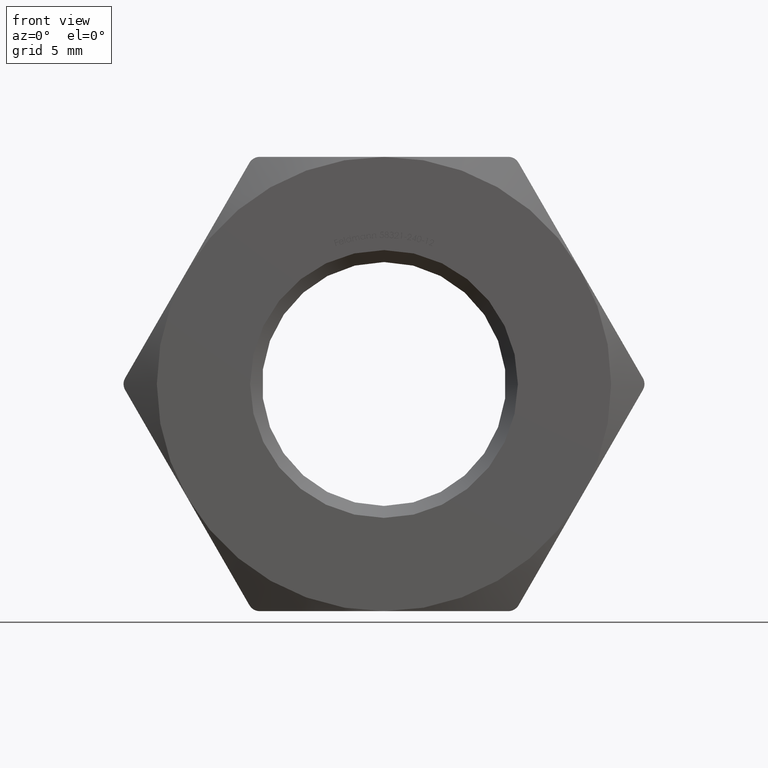
[diagram: clean part render]
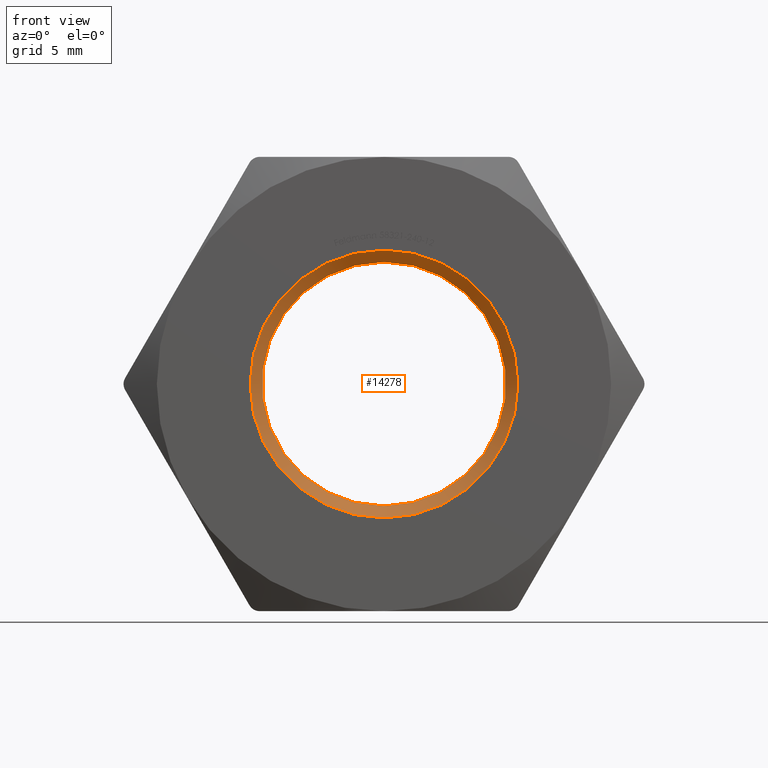
[diagram: same view with one face highlighted and labeled with its STEP entity id]
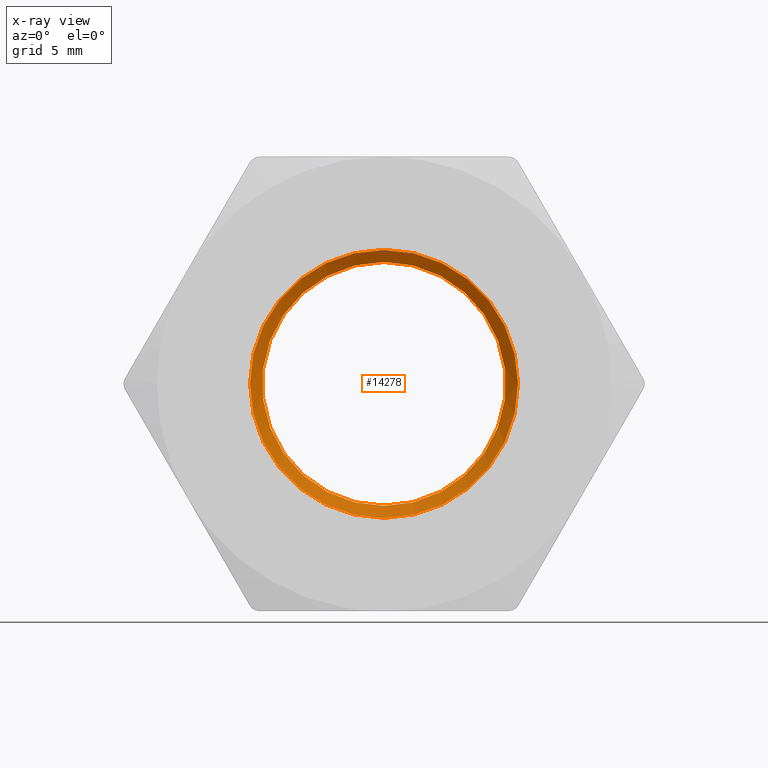
[diagram: x-ray of the same camera — body ghosted, the highlighted face saturated]
A machine part, front view. The second image highlights one B-rep face of the part: STEP entity #14278.
The next image is the same camera in x-ray: the body ghosted, the highlighted face saturated — about 0% of this face is hidden behind the body in this view.
In plain terms, the highlighted conical surface has half-angle 45 deg.
Its self-contained STEP definition (entity closure, byte-faithful):
#183 = DIRECTION ( 'NONE',  ( -0.0000000000000000000, -1.000000000000000000, -0.0000000000000000000 ) ) ;
#522 = DIRECTION ( 'NONE',  ( 0.0000000000000000000, 1.000000000000000000, 0.0000000000000000000 ) ) ;
#753 = CARTESIAN_POINT ( 'NONE',  ( 0.0000000000000000000, -5.000000000000000000, 5.599999999999997000 ) ) ;
#1453 = AXIS2_PLACEMENT_3D ( 'NONE', #11255, #522, #12475 ) ;
#2923 = CIRCLE ( 'NONE', #1453, 5.599999999999997000 ) ;
#3179 = AXIS2_PLACEMENT_3D ( 'NONE', #12324, #6285, #8781 ) ;
#3756 = DIRECTION ( 'NONE',  ( 0.0000000000000000000, 0.0000000000000000000, 1.000000000000000000 ) ) ;
#3842 = VERTEX_POINT ( 'NONE', #753 ) ;
#4698 = EDGE_LOOP ( 'NONE', ( #9048 ) ) ;
#4867 = FACE_BOUND ( 'NONE', #6365, .T. ) ;
#5669 = CARTESIAN_POINT ( 'NONE',  ( 0.0000000000000000000, -4.499999999999998200, 5.099999999999997900 ) ) ;
#6285 = DIRECTION ( 'NONE',  ( -0.0000000000000000000, -1.000000000000000000, -0.0000000000000000000 ) ) ;
#6365 = EDGE_LOOP ( 'NONE', ( #7473 ) ) ;
#6785 = CIRCLE ( 'NONE', #9321, 5.099999999999997900 ) ;
#7473 = ORIENTED_EDGE ( 'NONE', *, *, #9198, .F. ) ;
#8001 = CONICAL_SURFACE ( 'NONE', #3179, 5.599999999999997000, 0.7853981633974457300 ) ;
#8781 = DIRECTION ( 'NONE',  ( 0.0000000000000000000, 0.0000000000000000000, -1.000000000000000000 ) ) ;
#9048 = ORIENTED_EDGE ( 'NONE', *, *, #11997, .F. ) ;
#9198 = EDGE_CURVE ( 'NONE', #14408, #14408, #6785, .T. ) ;
#9321 = AXIS2_PLACEMENT_3D ( 'NONE', #10988, #183, #3756 ) ;
#10141 = FACE_OUTER_BOUND ( 'NONE', #4698, .T. ) ;
#10988 = CARTESIAN_POINT ( 'NONE',  ( 0.0000000000000000000, -4.499999999999998200, 0.0000000000000000000 ) ) ;
#11255 = CARTESIAN_POINT ( 'NONE',  ( 0.0000000000000000000, -5.000000000000000000, 0.0000000000000000000 ) ) ;
#11997 = EDGE_CURVE ( 'NONE', #3842, #3842, #2923, .T. ) ;
#12324 = CARTESIAN_POINT ( 'NONE',  ( 0.0000000000000000000, -5.000000000000000000, 0.0000000000000000000 ) ) ;
#12475 = DIRECTION ( 'NONE',  ( 0.0000000000000000000, 0.0000000000000000000, 1.000000000000000000 ) ) ;
#14278 = ADVANCED_FACE ( 'NONE', ( #4867, #10141 ), #8001, .F. ) ;
#14408 = VERTEX_POINT ( 'NONE', #5669 ) ;